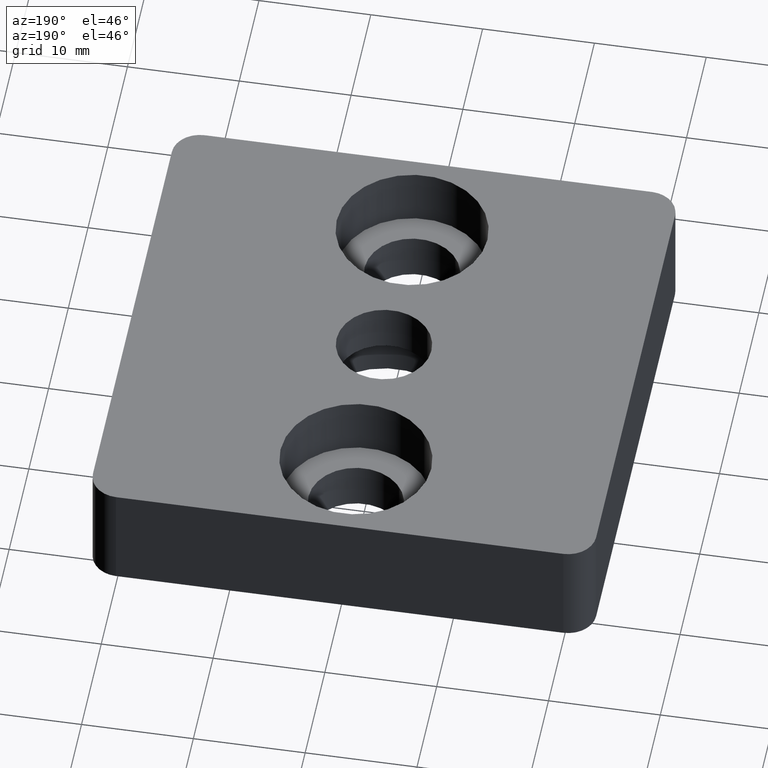
[diagram: clean part render]
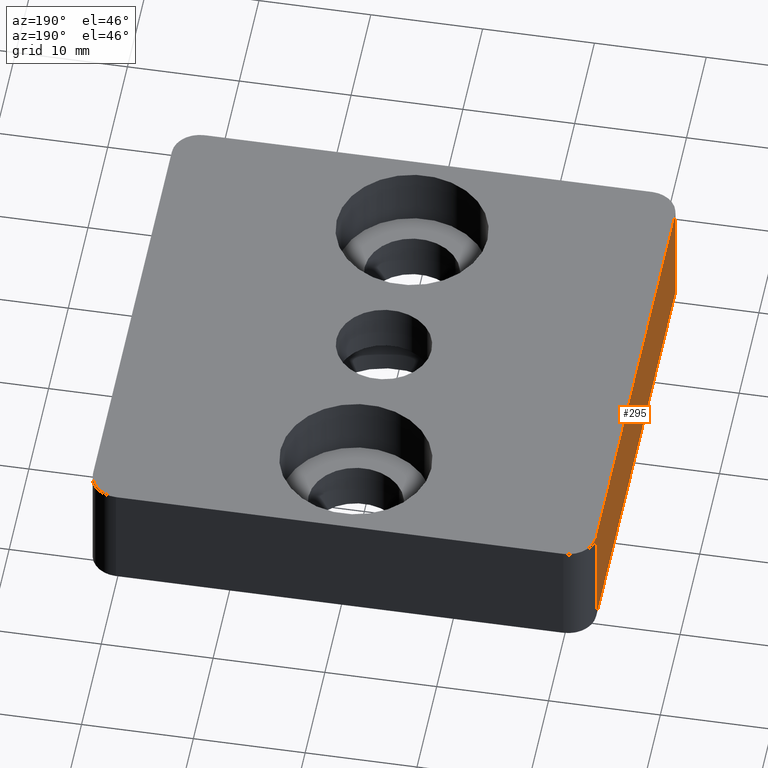
[diagram: same view with one face highlighted and labeled with its STEP entity id]
A machine part, auxiliary view. The second image highlights one B-rep face of the part: STEP entity #295.
In plain terms, the highlighted planar face has unit normal (1, 0, 0).
Its self-contained STEP definition (entity closure, byte-faithful):
#32=PLANE('',#322);
#44=FACE_OUTER_BOUND('',#63,.T.);
#63=EDGE_LOOP('',(#228,#229,#230,#231));
#121=LINE('',#478,#137);
#122=LINE('',#482,#138);
#123=LINE('',#484,#139);
#124=LINE('',#485,#140);
#137=VECTOR('',#381,10.);
#138=VECTOR('',#386,39.9999999998399);
#139=VECTOR('',#387,10.);
#140=VECTOR('',#388,39.9999999998399);
#154=VERTEX_POINT('',#475);
#155=VERTEX_POINT('',#477);
#156=VERTEX_POINT('',#481);
#157=VERTEX_POINT('',#483);
#186=EDGE_CURVE('',#155,#154,#121,.T.);
#188=EDGE_CURVE('',#154,#156,#122,.T.);
#189=EDGE_CURVE('',#157,#156,#123,.T.);
#190=EDGE_CURVE('',#155,#157,#124,.T.);
#228=ORIENTED_EDGE('',*,*,#186,.T.);
#229=ORIENTED_EDGE('',*,*,#188,.T.);
#230=ORIENTED_EDGE('',*,*,#189,.F.);
#231=ORIENTED_EDGE('',*,*,#190,.F.);
#295=ADVANCED_FACE('',(#44),#32,.F.);
#322=AXIS2_PLACEMENT_3D('',#480,#384,#385);
#381=DIRECTION('',(0.,0.,-1.));
#384=DIRECTION('center_axis',(1.,0.,0.));
#385=DIRECTION('ref_axis',(0.,0.,-1.));
#386=DIRECTION('',(0.,-1.,0.));
#387=DIRECTION('',(0.,0.,-1.));
#388=DIRECTION('',(0.,-1.,0.));
#475=CARTESIAN_POINT('',(-22.49999999991,19.99999999992,-10.));
#477=CARTESIAN_POINT('',(-22.49999999991,19.99999999992,0.));
#478=CARTESIAN_POINT('',(-22.49999999991,19.99999999992,0.));
#480=CARTESIAN_POINT('Origin',(-22.49999999991,19.99999999992,0.));
#481=CARTESIAN_POINT('',(-22.49999999991,-19.99999999992,-10.));
#482=CARTESIAN_POINT('',(-22.49999999991,19.99999999992,-10.));
#483=CARTESIAN_POINT('',(-22.49999999991,-19.99999999992,0.));
#484=CARTESIAN_POINT('',(-22.49999999991,-19.99999999992,0.));
#485=CARTESIAN_POINT('',(-22.49999999991,19.99999999992,0.));